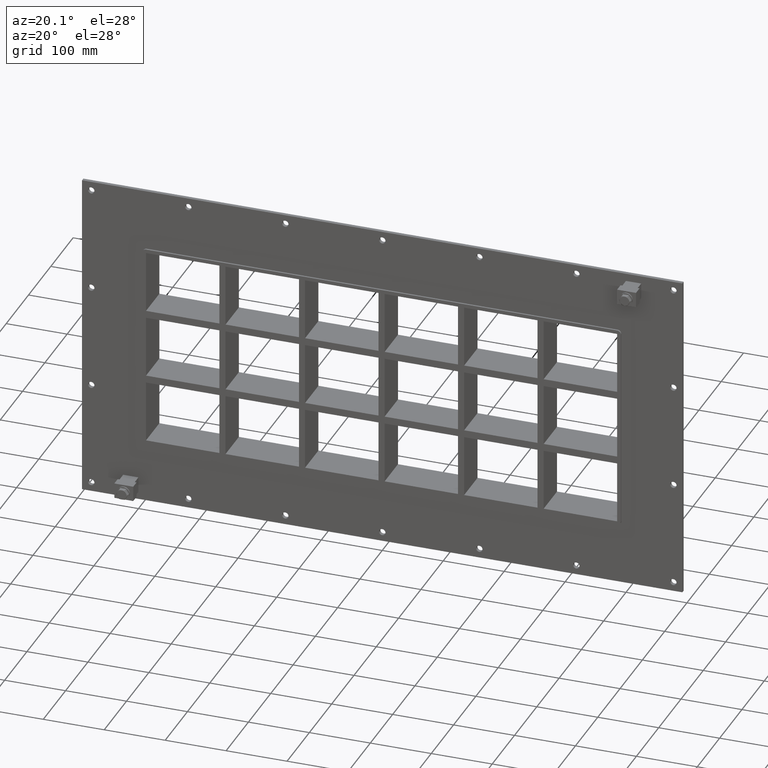
[diagram: clean part render]
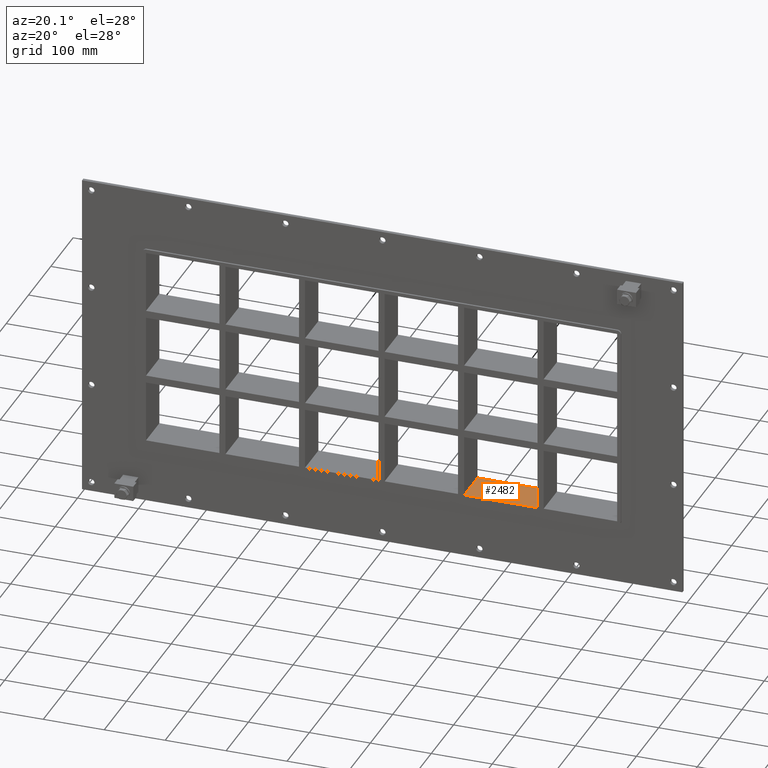
[diagram: same view with one face highlighted and labeled with its STEP entity id]
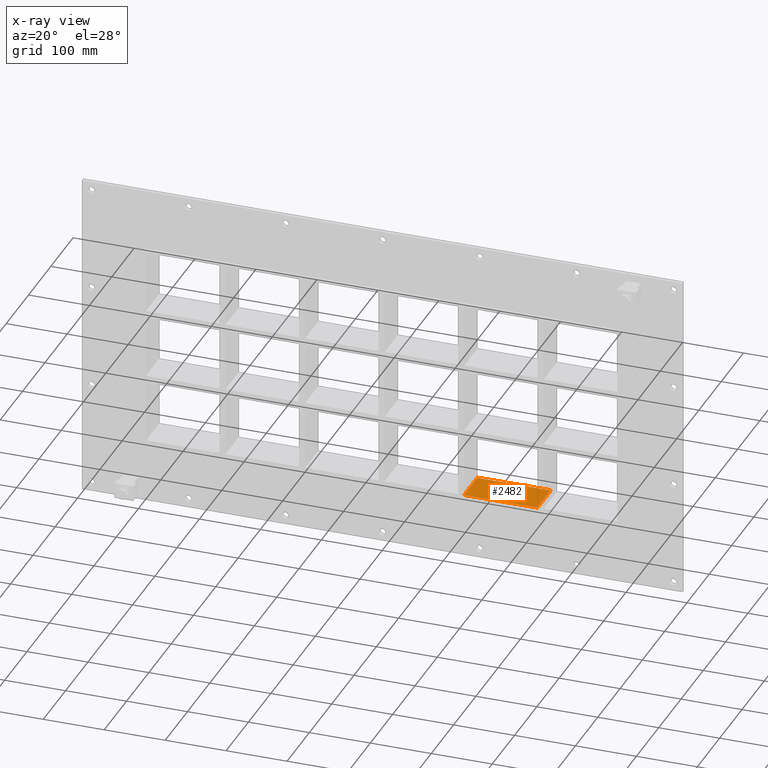
[diagram: x-ray of the same camera — body ghosted, the highlighted face saturated]
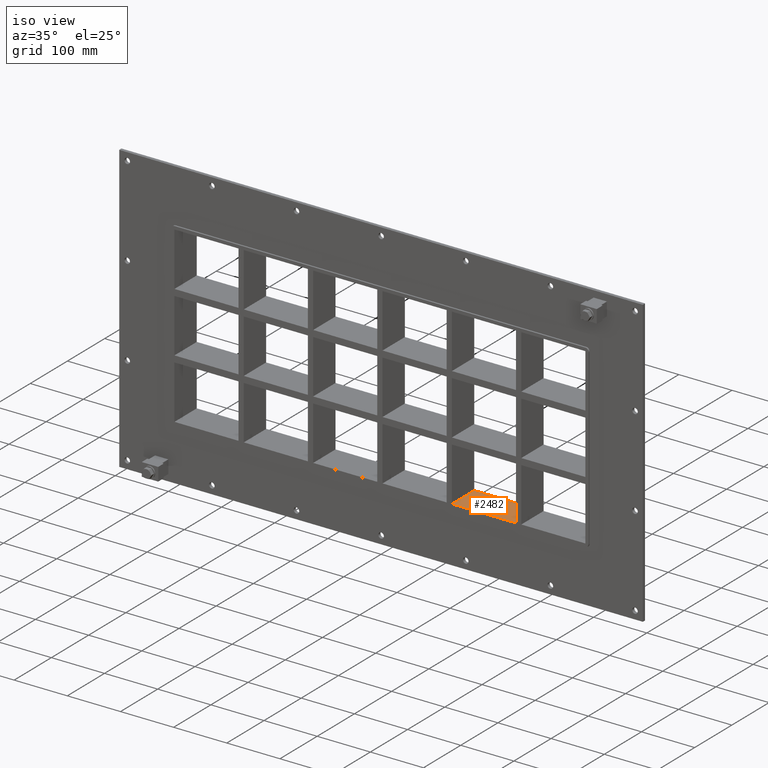
[diagram: same view with one face highlighted and labeled with its STEP entity id]
A machine part, auxiliary view. The second image highlights one B-rep face of the part: STEP entity #2482.
The next image is the same camera in x-ray: the body ghosted, the highlighted face saturated — about 0% of this face is hidden behind the body in this view.
A second angle (iso view) of the same face is appended — the face is thin or edge-on in the first view.
In plain terms, the highlighted planar face has unit normal (0, 0, -1).
Its self-contained STEP definition (entity closure, byte-faithful):
#1888=CARTESIAN_POINT('',(256.00000000000119,57.0,-163.50000000000009));
#1889=VERTEX_POINT('',#1888);
#1906=CARTESIAN_POINT('',(135.49999999999642,57.0,-163.4999999999819));
#1907=VERTEX_POINT('',#1906);
#1914=CARTESIAN_POINT('',(135.49999999999642,57.0,-163.50000000000009));
#1915=DIRECTION('',(1.0,0.0,0.0));
#1916=VECTOR('',#1915,120.50000000000477);
#1917=LINE('',#1914,#1916);
#1918=EDGE_CURVE('',#1907,#1889,#1917,.T.);
#2006=CARTESIAN_POINT('',(256.00000000000119,-3.0,-163.50000000000009));
#2007=VERTEX_POINT('',#2006);
#2008=CARTESIAN_POINT('',(256.00000000000114,-3.0,-163.50000000000009));
#2009=DIRECTION('',(0.0,1.0,0.0));
#2010=VECTOR('',#2009,60.000000000000007);
#2011=LINE('',#2008,#2010);
#2012=EDGE_CURVE('',#2007,#1889,#2011,.T.);
#2170=CARTESIAN_POINT('',(135.49999999999642,-3.0,-163.49999999998187));
#2171=VERTEX_POINT('',#2170);
#2178=CARTESIAN_POINT('',(135.49999999999642,57.000000000000007,-163.50000000000009));
#2179=DIRECTION('',(0.0,-1.0,0.0));
#2180=VECTOR('',#2179,60.000000000000007);
#2181=LINE('',#2178,#2180);
#2182=EDGE_CURVE('',#1907,#2171,#2181,.T.);
#2466=CARTESIAN_POINT('',(386.50000000000011,0.0,-163.50000000000009));
#2467=DIRECTION('',(0.0,0.0,-1.0));
#2468=DIRECTION('',(-1.0,0.0,0.0));
#2469=AXIS2_PLACEMENT_3D('',#2466,#2467,#2468);
#2470=PLANE('',#2469);
#2471=ORIENTED_EDGE('',*,*,#2012,.T.);
#2472=ORIENTED_EDGE('',*,*,#1918,.F.);
#2473=ORIENTED_EDGE('',*,*,#2182,.T.);
#2474=CARTESIAN_POINT('',(256.00000000000119,-3.0,-163.50000000000009));
#2475=DIRECTION('',(-1.0,0.0,0.0));
#2476=VECTOR('',#2475,120.50000000000477);
#2477=LINE('',#2474,#2476);
#2478=EDGE_CURVE('',#2007,#2171,#2477,.T.);
#2479=ORIENTED_EDGE('',*,*,#2478,.F.);
#2480=EDGE_LOOP('',(#2471,#2472,#2473,#2479));
#2481=FACE_OUTER_BOUND('',#2480,.T.);
#2482=ADVANCED_FACE('',(#2481),#2470,.F.);